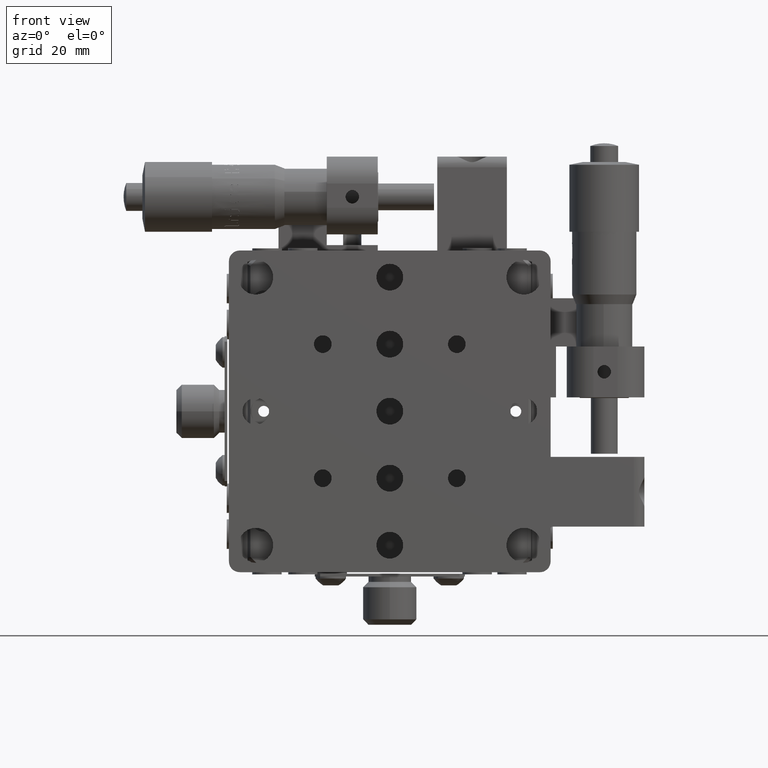
[diagram: clean part render]
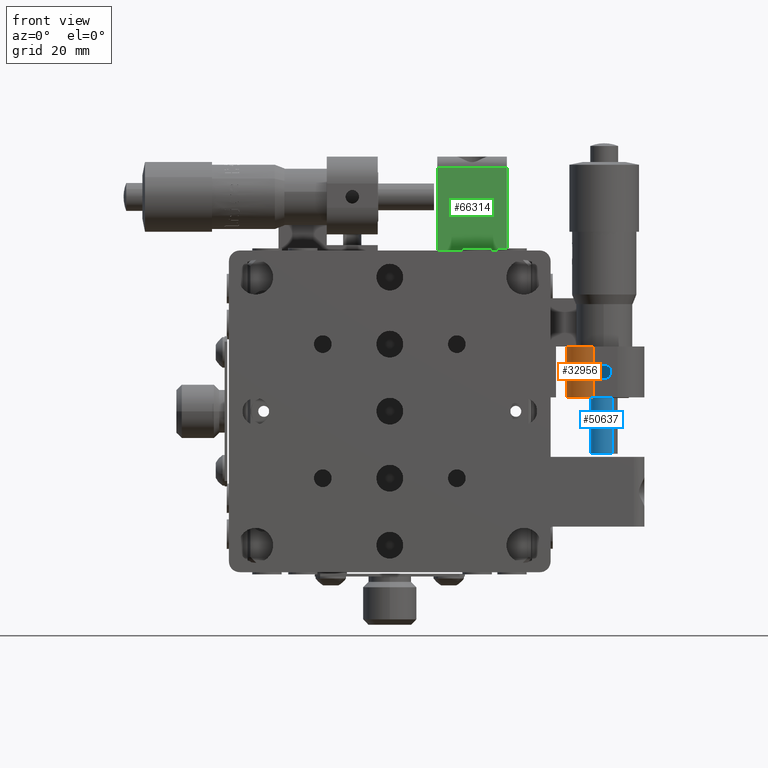
[diagram: same view with three faces highlighted in distinct colors, each labeled with its STEP entity id]
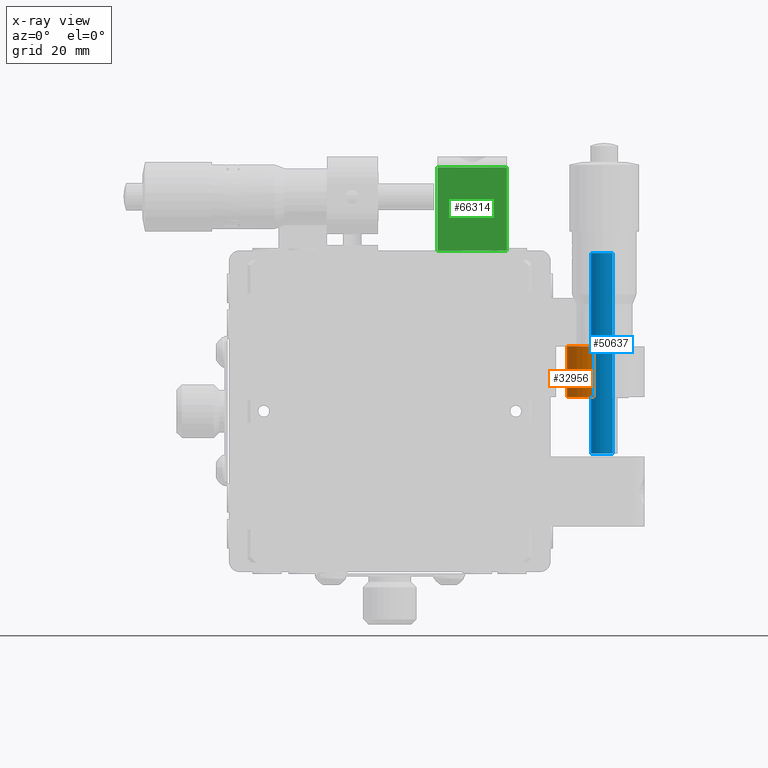
[diagram: x-ray of the same camera — body ghosted, the three highlighted faces saturated]
A machine part, front view with three faces highlighted in distinct colors.
The next image is the same camera in x-ray (body ghosted, the three faces saturated) — at least one of them is partly hidden behind the body in this view.
Their STEP definitions:

[orange] entity #32956 — the highlighted cylindrical surface (edge-blend (fillet) strip) has radius 5 mm, axis along (0, 0, 1).
#4285 = CARTESIAN_POINT ( 'NONE',  ( 37.99999999999999300, 6.100000000000003200, 2.600000000000001400 ) ) ;
#5009 = VERTEX_POINT ( 'NONE', #17842 ) ;
#7469 = DIRECTION ( 'NONE',  ( 9.244463733058734800E-033, 1.006527545072544000E-016, 1.000000000000000000 ) ) ;
#8690 = ORIENTED_EDGE ( 'NONE', *, *, #63888, .F. ) ;
#9947 = DIRECTION ( 'NONE',  ( 9.244463733058734800E-033, 1.006527545072544000E-016, 1.000000000000000000 ) ) ;
#11641 = CIRCLE ( 'NONE', #16324, 4.999999999999997300 ) ;
#12363 = VERTEX_POINT ( 'NONE', #13106 ) ;
#13106 = CARTESIAN_POINT ( 'NONE',  ( 32.99999999999999300, 6.100000000000005900, 12.10000000000000100 ) ) ;
#14599 = EDGE_LOOP ( 'NONE', ( #53891, #23753, #8690, #29552 ) ) ;
#16123 = DIRECTION ( 'NONE',  ( 9.244463733058734800E-033, 1.006527545072544000E-016, 1.000000000000000000 ) ) ;
#16324 = AXIS2_PLACEMENT_3D ( 'NONE', #32081, #71201, #37743 ) ;
#17842 = CARTESIAN_POINT ( 'NONE',  ( 37.99999999999999300, 1.100000000000005400, 12.10000000000000300 ) ) ;
#21668 = CARTESIAN_POINT ( 'NONE',  ( 32.99999999999999300, 6.100000000000005000, 2.600000000000001400 ) ) ;
#23753 = ORIENTED_EDGE ( 'NONE', *, *, #60849, .F. ) ;
#25453 = CARTESIAN_POINT ( 'NONE',  ( 37.99999999999999300, 6.100000000000003200, 2.600000000000001400 ) ) ;
#26610 = AXIS2_PLACEMENT_3D ( 'NONE', #4285, #9947, #71507 ) ;
#27541 = VECTOR ( 'NONE', #16123, 1000.000000000000000 ) ;
#29552 = ORIENTED_EDGE ( 'NONE', *, *, #55529, .T. ) ;
#29700 = CARTESIAN_POINT ( 'NONE',  ( 32.99999999999999300, 6.100000000000005000, 2.600000000000001400 ) ) ;
#31090 = DIRECTION ( 'NONE',  ( 1.000000000000000000, -3.469446951953616200E-016, 0.0000000000000000000 ) ) ;
#32081 = CARTESIAN_POINT ( 'NONE',  ( 37.99999999999999300, 6.100000000000005000, 12.10000000000000100 ) ) ;
#32956 = ADVANCED_FACE ( 'NONE', ( #62468 ), #70303, .T. ) ;
#33028 = CARTESIAN_POINT ( 'NONE',  ( 37.99999999999999300, 1.100000000000005400, 2.600000000000002300 ) ) ;
#36192 = EDGE_CURVE ( 'NONE', #12363, #5009, #11641, .T. ) ;
#37743 = DIRECTION ( 'NONE',  ( -1.000000000000000000, 3.469446951953616200E-016, 0.0000000000000000000 ) ) ;
#43987 = CARTESIAN_POINT ( 'NONE',  ( 37.99999999999999300, 1.100000000000005400, 2.600000000000002300 ) ) ;
#44723 = VECTOR ( 'NONE', #7469, 1000.000000000000000 ) ;
#49178 = VERTEX_POINT ( 'NONE', #21668 ) ;
#53595 = CIRCLE ( 'NONE', #54186, 4.999999999999997300 ) ;
#53891 = ORIENTED_EDGE ( 'NONE', *, *, #36192, .F. ) ;
#54186 = AXIS2_PLACEMENT_3D ( 'NONE', #25453, #64589, #31090 ) ;
#55529 = EDGE_CURVE ( 'NONE', #68332, #5009, #57306, .T. ) ;
#57306 = LINE ( 'NONE', #43987, #27541 ) ;
#59609 = LINE ( 'NONE', #29700, #44723 ) ;
#60849 = EDGE_CURVE ( 'NONE', #49178, #12363, #59609, .T. ) ;
#62468 = FACE_OUTER_BOUND ( 'NONE', #14599, .T. ) ;
#63888 = EDGE_CURVE ( 'NONE', #68332, #49178, #53595, .T. ) ;
#64589 = DIRECTION ( 'NONE',  ( -9.244463733058734800E-033, -1.006527545072544000E-016, -1.000000000000000000 ) ) ;
#68332 = VERTEX_POINT ( 'NONE', #33028 ) ;
#70303 = CYLINDRICAL_SURFACE ( 'NONE', #26610, 4.999999999999997300 ) ;
#71201 = DIRECTION ( 'NONE',  ( 9.244463733058734800E-033, 1.006527545072544000E-016, 1.000000000000000000 ) ) ;
#71507 = DIRECTION ( 'NONE',  ( -1.000000000000000000, 3.469446951953616200E-016, 0.0000000000000000000 ) ) ;

[blue] entity #50637 — the highlighted cylindrical surface (edge-blend (fillet) strip) has radius 2.5 mm, axis along (-0, 0, 1).
#3916 = DIRECTION ( 'NONE',  ( -1.985969020082118900E-018, 9.582087370709749100E-017, 1.000000000000000000 ) ) ;
#4756 = DIRECTION ( 'NONE',  ( 1.985969020082118900E-018, -9.582087370709749100E-017, -1.000000000000000000 ) ) ;
#8517 = CIRCLE ( 'NONE', #30656, 2.500000000000002700 ) ;
#9611 = CIRCLE ( 'NONE', #59170, 2.500000000000009300 ) ;
#11336 = ORIENTED_EDGE ( 'NONE', *, *, #12854, .T. ) ;
#12854 = EDGE_CURVE ( 'NONE', #47022, #15042, #8517, .T. ) ;
#15042 = VERTEX_POINT ( 'NONE', #61882 ) ;
#16769 = CARTESIAN_POINT ( 'NONE',  ( 40.00000000000000700, 9.399999999999975500, -7.899999999999979900 ) ) ;
#18059 = ORIENTED_EDGE ( 'NONE', *, *, #41020, .F. ) ;
#20056 = CYLINDRICAL_SURFACE ( 'NONE', #53736, 2.500000000000003600 ) ;
#22370 = DIRECTION ( 'NONE',  ( 0.6147219585423612200, -0.7887438834538391700, 0.0000000000000000000 ) ) ;
#27441 = DIRECTION ( 'NONE',  ( -1.985969020082118900E-018, 9.582087370709749100E-017, 1.000000000000000000 ) ) ;
#30458 = LINE ( 'NONE', #31800, #45340 ) ;
#30656 = AXIS2_PLACEMENT_3D ( 'NONE', #38253, #4756, #43849 ) ;
#31800 = CARTESIAN_POINT ( 'NONE',  ( 41.53680489635590300, 7.428140291365386000, 62.54102306920764000 ) ) ;
#32914 = EDGE_LOOP ( 'NONE', ( #18059, #34481, #63178, #11336 ) ) ;
#33086 = CARTESIAN_POINT ( 'NONE',  ( 40.00000000000000000, 9.399999999999989700, 62.54102306920764000 ) ) ;
#34231 = LINE ( 'NONE', #68427, #62213 ) ;
#34481 = ORIENTED_EDGE ( 'NONE', *, *, #38769, .T. ) ;
#38253 = CARTESIAN_POINT ( 'NONE',  ( 40.00000000000002800, 9.400000000000000400, 29.50000000000000400 ) ) ;
#38769 = EDGE_CURVE ( 'NONE', #66665, #68175, #9611, .T. ) ;
#38876 = CARTESIAN_POINT ( 'NONE',  ( 38.46319510364410400, 11.37185970863457700, -7.899999999999979900 ) ) ;
#40192 = FACE_OUTER_BOUND ( 'NONE', #32914, .T. ) ;
#40766 = CARTESIAN_POINT ( 'NONE',  ( 41.53680489635590300, 7.428140291365383300, 29.50000000000000400 ) ) ;
#41020 = EDGE_CURVE ( 'NONE', #66665, #15042, #34231, .T. ) ;
#43849 = DIRECTION ( 'NONE',  ( -0.6147219585423601100, 0.7887438834538399400, 0.0000000000000000000 ) ) ;
#45340 = VECTOR ( 'NONE', #3916, 1000.000000000000000 ) ;
#47022 = VERTEX_POINT ( 'NONE', #40766 ) ;
#50637 = ADVANCED_FACE ( 'NONE', ( #40192 ), #20056, .T. ) ;
#53736 = AXIS2_PLACEMENT_3D ( 'NONE', #33086, #27441, #61186 ) ;
#55428 = EDGE_CURVE ( 'NONE', #68175, #47022, #30458, .T. ) ;
#55854 = DIRECTION ( 'NONE',  ( -1.985969020082118900E-018, 9.582087370709749100E-017, 1.000000000000000000 ) ) ;
#59170 = AXIS2_PLACEMENT_3D ( 'NONE', #16769, #55854, #22370 ) ;
#61186 = DIRECTION ( 'NONE',  ( 0.6147219585423598900, -0.7887438834538402800, 0.0000000000000000000 ) ) ;
#61882 = CARTESIAN_POINT ( 'NONE',  ( 38.46319510364410400, 11.37185970863457900, 29.50000000000000400 ) ) ;
#62213 = VECTOR ( 'NONE', #62320, 1000.000000000000000 ) ;
#62320 = DIRECTION ( 'NONE',  ( -1.985969020082118900E-018, 9.582087370709749100E-017, 1.000000000000000000 ) ) ;
#63178 = ORIENTED_EDGE ( 'NONE', *, *, #55428, .T. ) ;
#66665 = VERTEX_POINT ( 'NONE', #38876 ) ;
#68175 = VERTEX_POINT ( 'NONE', #70933 ) ;
#68427 = CARTESIAN_POINT ( 'NONE',  ( 38.46319510364409700, 11.37185970863459300, 62.54102306920764000 ) ) ;
#70933 = CARTESIAN_POINT ( 'NONE',  ( 41.53680489635591800, 7.428140291365370900, -7.899999999999979900 ) ) ;

[green] entity #66314 — the highlighted planar face has unit normal (0, 1, -0).
#1188 = EDGE_CURVE ( 'NONE', #27085, #60189, #62308, .T. ) ;
#1240 = DIRECTION ( 'NONE',  ( 0.0000000000000000000, 1.000000000000000000, -3.446713680595041600E-018 ) ) ;
#1713 = DIRECTION ( 'NONE',  ( 0.0000000000000000000, 3.446713680595041300E-018, 1.000000000000000000 ) ) ;
#1951 = ORIENTED_EDGE ( 'NONE', *, *, #49753, .F. ) ;
#2027 = VERTEX_POINT ( 'NONE', #18669 ) ;
#4450 = VECTOR ( 'NONE', #52616, 1000.000000000000000 ) ;
#4567 = VECTOR ( 'NONE', #28384, 1000.000000000000000 ) ;
#7200 = CARTESIAN_POINT ( 'NONE',  ( 21.84999999999999800, 13.10000000000007100, 29.99999999999999300 ) ) ;
#9046 = VECTOR ( 'NONE', #34387, 1000.000000000000000 ) ;
#10822 = ORIENTED_EDGE ( 'NONE', *, *, #31942, .T. ) ;
#16468 = CARTESIAN_POINT ( 'NONE',  ( 8.849999999999999600, 13.10000000000007100, 29.99999999999999300 ) ) ;
#17382 = ORIENTED_EDGE ( 'NONE', *, *, #55993, .T. ) ;
#18669 = CARTESIAN_POINT ( 'NONE',  ( 21.84999999999999800, 13.10000000000007100, 45.49999999999999300 ) ) ;
#23914 = LINE ( 'NONE', #28710, #9046 ) ;
#27085 = VERTEX_POINT ( 'NONE', #35809 ) ;
#28384 = DIRECTION ( 'NONE',  ( 0.0000000000000000000, 3.446713680595041300E-018, 1.000000000000000000 ) ) ;
#28436 = ORIENTED_EDGE ( 'NONE', *, *, #1188, .F. ) ;
#28710 = CARTESIAN_POINT ( 'NONE',  ( 8.849999999999999600, 13.10000000000007100, 29.99999999999999300 ) ) ;
#30231 = FACE_OUTER_BOUND ( 'NONE', #55747, .T. ) ;
#30365 = CARTESIAN_POINT ( 'NONE',  ( 8.849999999999999600, 13.10000000000007100, 45.49999999999999300 ) ) ;
#31942 = EDGE_CURVE ( 'NONE', #67307, #2027, #58351, .T. ) ;
#32791 = CARTESIAN_POINT ( 'NONE',  ( 8.849999999999999600, 13.10000000000007100, 45.49999999999999300 ) ) ;
#34220 = LINE ( 'NONE', #30365, #4450 ) ;
#34387 = DIRECTION ( 'NONE',  ( 1.000000000000000000, -0.0000000000000000000, -0.0000000000000000000 ) ) ;
#34808 = CARTESIAN_POINT ( 'NONE',  ( 8.849999999999999600, 13.10000000000007100, 29.99999999999999300 ) ) ;
#35809 = CARTESIAN_POINT ( 'NONE',  ( 8.849999999999999600, 13.10000000000007100, 29.99999999999999300 ) ) ;
#40400 = DIRECTION ( 'NONE',  ( -0.0000000000000000000, -3.446713680595041600E-018, -1.000000000000000000 ) ) ;
#43498 = VECTOR ( 'NONE', #1713, 1000.000000000000000 ) ;
#45050 = PLANE ( 'NONE',  #51111 ) ;
#49753 = EDGE_CURVE ( 'NONE', #60189, #2027, #34220, .T. ) ;
#51111 = AXIS2_PLACEMENT_3D ( 'NONE', #34808, #1240, #40400 ) ;
#52616 = DIRECTION ( 'NONE',  ( 1.000000000000000000, -0.0000000000000000000, -0.0000000000000000000 ) ) ;
#55747 = EDGE_LOOP ( 'NONE', ( #10822, #1951, #28436, #17382 ) ) ;
#55993 = EDGE_CURVE ( 'NONE', #27085, #67307, #23914, .T. ) ;
#58351 = LINE ( 'NONE', #68740, #43498 ) ;
#60189 = VERTEX_POINT ( 'NONE', #32791 ) ;
#62308 = LINE ( 'NONE', #16468, #4567 ) ;
#66314 = ADVANCED_FACE ( 'NONE', ( #30231 ), #45050, .F. ) ;
#67307 = VERTEX_POINT ( 'NONE', #7200 ) ;
#68740 = CARTESIAN_POINT ( 'NONE',  ( 21.84999999999999800, 13.10000000000007100, 29.99999999999999300 ) ) ;